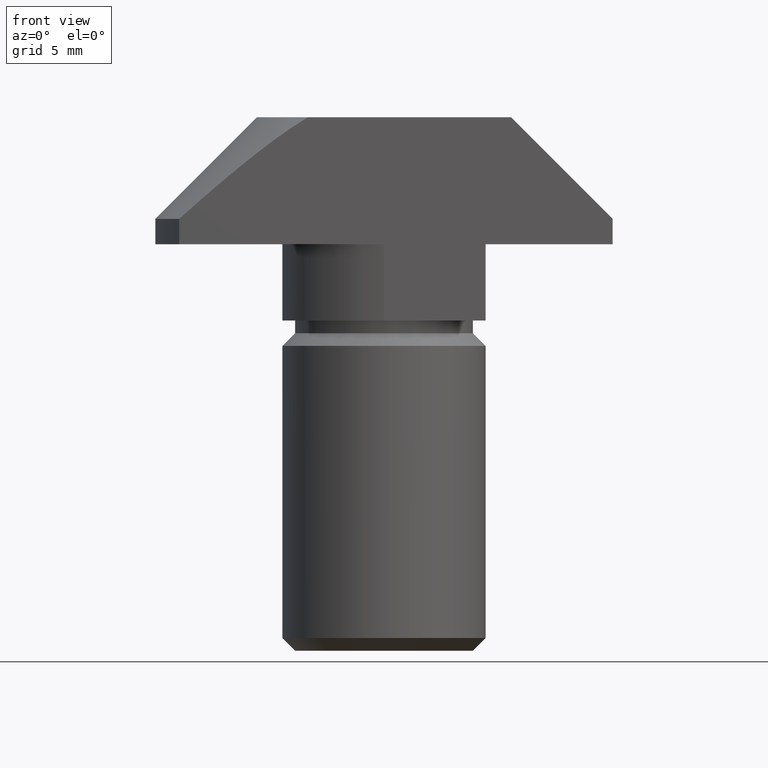
[diagram: clean part render]
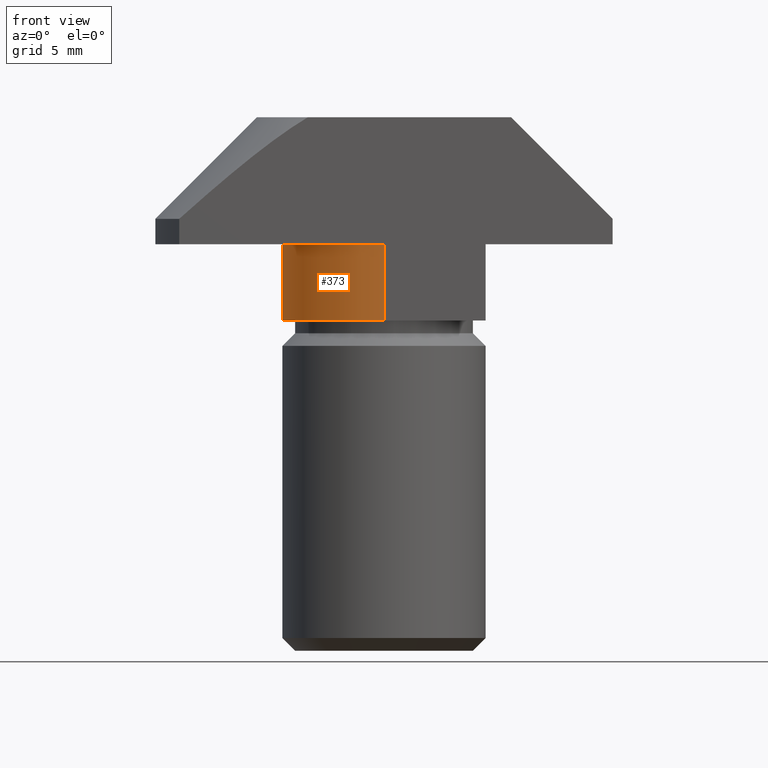
[diagram: same view with one face highlighted and labeled with its STEP entity id]
A machine part, front view. The second image highlights one B-rep face of the part: STEP entity #373.
In plain terms, the highlighted cylindrical surface (partial cylindrical patch) has radius 4 mm, axis along (0, 0, -1).
Its self-contained STEP definition (entity closure, byte-faithful):
#20=LINE('',#566,#54);
#21=LINE('',#572,#55);
#54=VECTOR('',#457,3.);
#55=VECTOR('',#464,3.);
#100=CYLINDRICAL_SURFACE('',#403,4.00000000000001);
#115=FACE_OUTER_BOUND('',#142,.T.);
#142=EDGE_LOOP('',(#274,#275,#276,#277));
#165=CIRCLE('',#404,4.00000000000001);
#166=CIRCLE('',#405,4.00000000000001);
#181=VERTEX_POINT('',#560);
#183=VERTEX_POINT('',#564);
#184=VERTEX_POINT('',#568);
#185=VERTEX_POINT('',#570);
#218=EDGE_CURVE('',#181,#183,#20,.T.);
#219=EDGE_CURVE('',#181,#184,#165,.T.);
#220=EDGE_CURVE('',#185,#183,#166,.T.);
#221=EDGE_CURVE('',#184,#185,#21,.T.);
#274=ORIENTED_EDGE('',*,*,#219,.F.);
#275=ORIENTED_EDGE('',*,*,#218,.T.);
#276=ORIENTED_EDGE('',*,*,#220,.F.);
#277=ORIENTED_EDGE('',*,*,#221,.F.);
#373=ADVANCED_FACE('',(#115),#100,.T.);
#403=AXIS2_PLACEMENT_3D('',#567,#458,#459);
#404=AXIS2_PLACEMENT_3D('',#569,#460,#461);
#405=AXIS2_PLACEMENT_3D('',#571,#462,#463);
#457=DIRECTION('',(0.,0.,-1.));
#458=DIRECTION('center_axis',(0.,0.,-1.));
#459=DIRECTION('ref_axis',(2.7755575615629E-16,1.,0.));
#460=DIRECTION('center_axis',(0.,0.,1.));
#461=DIRECTION('ref_axis',(2.7755575615629E-16,1.,0.));
#462=DIRECTION('center_axis',(0.,0.,-1.));
#463=DIRECTION('ref_axis',(2.7755575615629E-16,1.,0.));
#464=DIRECTION('',(0.,0.,-1.));
#560=CARTESIAN_POINT('',(-3.99999999999999,-1.4432899320127E-14,-5.));
#564=CARTESIAN_POINT('',(-3.99999999999999,-1.4432899320127E-14,-8.));
#566=CARTESIAN_POINT('',(-3.99999999999999,-1.4432899320127E-14,-5.));
#567=CARTESIAN_POINT('Origin',(1.11022302462516E-15,-1.33226762955019E-14,
-5.));
#568=CARTESIAN_POINT('',(0.,-4.00000000000001,-5.));
#569=CARTESIAN_POINT('Origin',(1.11022302462516E-15,-1.33226762955019E-14,
-5.));
#570=CARTESIAN_POINT('',(0.,-4.00000000000001,-8.));
#571=CARTESIAN_POINT('Origin',(1.11022302462516E-15,-1.33226762955019E-14,
-8.));
#572=CARTESIAN_POINT('',(0.,-4.00000000000001,-5.));